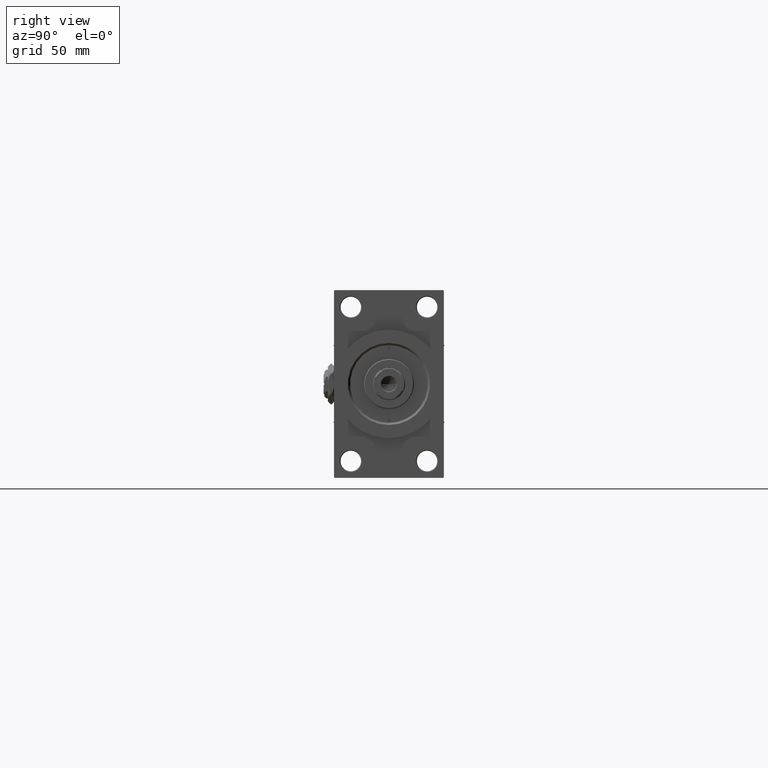
[diagram: clean part render]
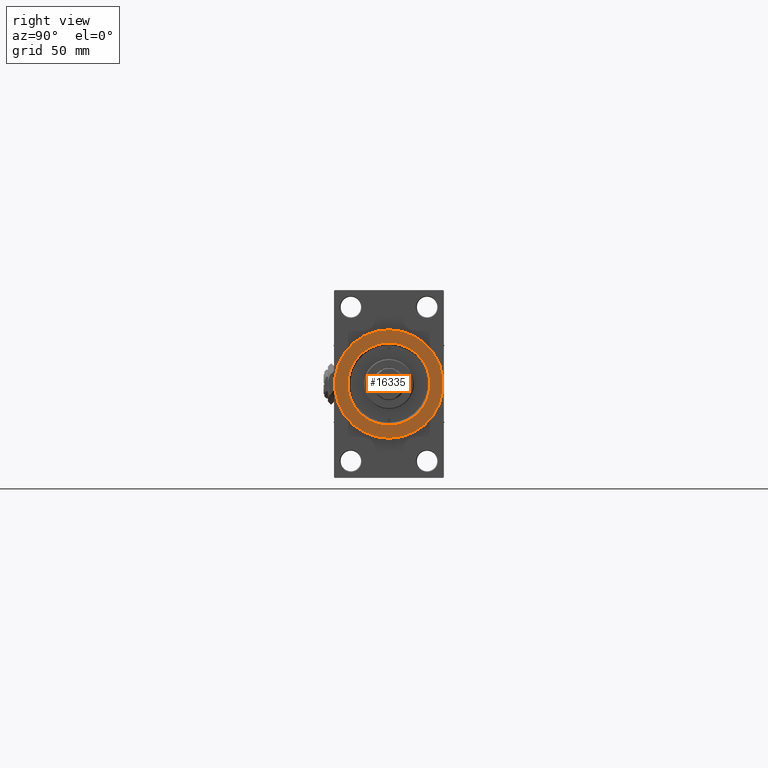
[diagram: same view with one face highlighted and labeled with its STEP entity id]
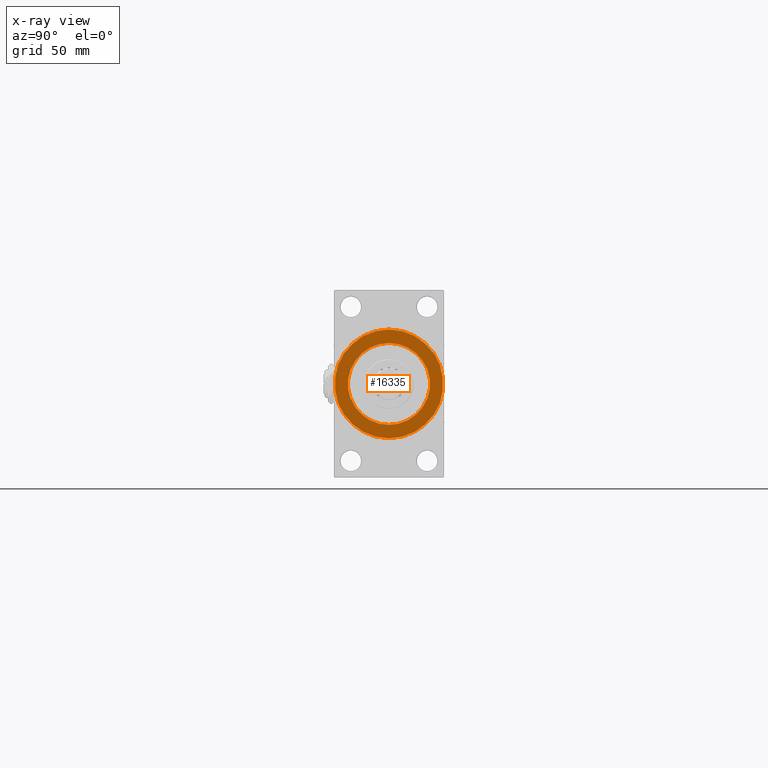
[diagram: x-ray of the same camera — body ghosted, the highlighted face saturated]
A machine part, right view. The second image highlights one B-rep face of the part: STEP entity #16335.
The next image is the same camera in x-ray: the body ghosted, the highlighted face saturated — about 0% of this face is hidden behind the body in this view.
In plain terms, the highlighted planar face has unit normal (1, 0, 0).
Its self-contained STEP definition (entity closure, byte-faithful):
#390 = DIRECTION ( 'NONE',  ( 0.000000000000000000, 0.000000000000000000, -1.000000000000000000 ) ) ;
#547 = DIRECTION ( 'NONE',  ( 0.000000000000000000, 0.000000000000000000, -1.000000000000000000 ) ) ;
#1244 = PLANE ( 'NONE',  #23619 ) ;
#1860 = CARTESIAN_POINT ( 'NONE',  ( 434.0000000000000000, 0.000000000000000000, 0.000000000000000000 ) ) ;
#2179 = EDGE_CURVE ( 'NONE', #30446, #36743, #28099, .T. ) ;
#3195 = EDGE_CURVE ( 'NONE', #36743, #30446, #24139, .T. ) ;
#7272 = AXIS2_PLACEMENT_3D ( 'NONE', #1860, #9861, #20885 ) ;
#7952 = CARTESIAN_POINT ( 'NONE',  ( 434.0000000000000000, 0.000000000000000000, 0.000000000000000000 ) ) ;
#9185 = ORIENTED_EDGE ( 'NONE', *, *, #3195, .T. ) ;
#9861 = DIRECTION ( 'NONE',  ( -1.000000000000000000, -0.000000000000000000, -0.000000000000000000 ) ) ;
#11299 = EDGE_LOOP ( 'NONE', ( #25541, #16616 ) ) ;
#12113 = AXIS2_PLACEMENT_3D ( 'NONE', #26454, #37709, #390 ) ;
#13029 = FACE_BOUND ( 'NONE', #11299, .T. ) ;
#16335 = ADVANCED_FACE ( 'NONE', ( #13029, #40040 ), #1244, .T. ) ;
#16542 = CARTESIAN_POINT ( 'NONE',  ( 434.0000000000000000, 0.000000000000000000, 0.000000000000000000 ) ) ;
#16616 = ORIENTED_EDGE ( 'NONE', *, *, #36225, .T. ) ;
#16797 = AXIS2_PLACEMENT_3D ( 'NONE', #7952, #30977, #26493 ) ;
#17643 = CIRCLE ( 'NONE', #7272, 27.99999999999996803 ) ;
#18905 = DIRECTION ( 'NONE',  ( 1.000000000000000000, 0.000000000000000000, 0.000000000000000000 ) ) ;
#19090 = ORIENTED_EDGE ( 'NONE', *, *, #2179, .T. ) ;
#19195 = VERTEX_POINT ( 'NONE', #23739 ) ;
#19788 = EDGE_LOOP ( 'NONE', ( #19090, #9185 ) ) ;
#20127 = AXIS2_PLACEMENT_3D ( 'NONE', #49151, #18905, #547 ) ;
#20885 = DIRECTION ( 'NONE',  ( 0.000000000000000000, 0.000000000000000000, -1.000000000000000000 ) ) ;
#22394 = CIRCLE ( 'NONE', #16797, 27.99999999999996803 ) ;
#23619 = AXIS2_PLACEMENT_3D ( 'NONE', #16542, #28303, #47039 ) ;
#23739 = CARTESIAN_POINT ( 'NONE',  ( 434.0000000000000000, 3.429011037612585332E-15, 27.99999999999996803 ) ) ;
#24139 = CIRCLE ( 'NONE', #20127, 37.00000000000000000 ) ;
#24375 = VERTEX_POINT ( 'NONE', #38271 ) ;
#25541 = ORIENTED_EDGE ( 'NONE', *, *, #30947, .T. ) ;
#26454 = CARTESIAN_POINT ( 'NONE',  ( 434.0000000000000000, 0.000000000000000000, 0.000000000000000000 ) ) ;
#26493 = DIRECTION ( 'NONE',  ( 0.000000000000000000, 0.000000000000000000, -1.000000000000000000 ) ) ;
#28099 = CIRCLE ( 'NONE', #12113, 37.00000000000000000 ) ;
#28303 = DIRECTION ( 'NONE',  ( 1.000000000000000000, 0.000000000000000000, 0.000000000000000000 ) ) ;
#30446 = VERTEX_POINT ( 'NONE', #37550 ) ;
#30947 = EDGE_CURVE ( 'NONE', #24375, #19195, #22394, .T. ) ;
#30977 = DIRECTION ( 'NONE',  ( -1.000000000000000000, -0.000000000000000000, -0.000000000000000000 ) ) ;
#36225 = EDGE_CURVE ( 'NONE', #19195, #24375, #17643, .T. ) ;
#36743 = VERTEX_POINT ( 'NONE', #38981 ) ;
#37550 = CARTESIAN_POINT ( 'NONE',  ( 434.0000000000000000, 0.000000000000000000, 37.00000000000000000 ) ) ;
#37709 = DIRECTION ( 'NONE',  ( 1.000000000000000000, 0.000000000000000000, 0.000000000000000000 ) ) ;
#38271 = CARTESIAN_POINT ( 'NONE',  ( 434.0000000000000000, 0.000000000000000000, -27.99999999999996803 ) ) ;
#38981 = CARTESIAN_POINT ( 'NONE',  ( 434.0000000000000000, 4.531193156845206793E-15, -37.00000000000000000 ) ) ;
#40040 = FACE_OUTER_BOUND ( 'NONE', #19788, .T. ) ;
#47039 = DIRECTION ( 'NONE',  ( 0.000000000000000000, 0.000000000000000000, -1.000000000000000000 ) ) ;
#49151 = CARTESIAN_POINT ( 'NONE',  ( 434.0000000000000000, 0.000000000000000000, 0.000000000000000000 ) ) ;